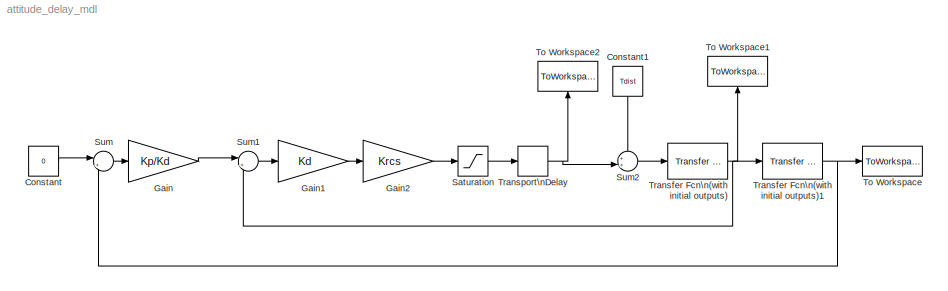
MODEL attitude_delay_mdl
KIND model
BLOCK [Constant] Constant
  OutDataType = sfix(16)
  OutScaling = 2^0
  Value = 0
BLOCK [Constant] Constant1
  OutDataType = sfix(16)
  OutScaling = 2^0
  Value = Tdist
BLOCK [Gain] Gain
  Gain = Kp/Kd
  OutDataType = sfix(16)
  OutScaling = 2^0
  ParameterDataType = sfix(16)
  ParameterScaling = 2^0
BLOCK [Gain] Gain1
  Gain = Kd
  OutDataType = sfix(16)
  OutScaling = 2^0
  ParameterDataType = sfix(16)
  ParameterScaling = 2^0
BLOCK [Gain] Gain2
  Gain = Krcs
  OutDataType = sfix(16)
  OutScaling = 2^0
  ParameterDataType = sfix(16)
  ParameterScaling = 2^0
BLOCK [Saturate] Saturation
  LowerLimit = -Trcs_max
  SampleTime = dt
  UpperLimit = Trcs_max
BLOCK [Sum] Sum
  IconShape = round
  InputSameDT = off
  Inputs = |+-
  OutDataType = sfix(16)
  OutDataTypeMode = Inherit via internal rule
  OutScaling = 2^0
  Ports = [2, 1]
BLOCK [Sum] Sum1
  IconShape = round
  InputSameDT = off
  Inputs = |+-
  OutDataType = sfix(16)
  OutDataTypeMode = Inherit via internal rule
  OutScaling = 2^0
  Ports = [2, 1]
BLOCK [Sum] Sum2
  IconShape = round
  InputSameDT = off
  Inputs = ++|
  OutDataType = sfix(16)
  OutDataTypeMode = Inherit via internal rule
  OutScaling = 2^0
  Ports = [2, 1]
BLOCK [ToWorkspace] To Workspace
  MaxDataPoints = inf
  SampleTime = dt
  SaveFormat = Array
  VariableName = angle3
BLOCK [ToWorkspace] To Workspace1
  MaxDataPoints = inf
  SampleTime = dt
  SaveFormat = Array
  VariableName = w3
BLOCK [ToWorkspace] To Workspace2
  MaxDataPoints = inf
  SampleTime = dt
  SaveFormat = Array
  VariableName = Trcs3
BLOCK [Reference] Transfer Fcn\n(with initial outputs)  REF=simulink_extras/Additional\nLinear/Transfer Fcn\n(with initial outputs)
  D = [I 0]
  FunctionWithSeparateData = off
  N = [1]
  Ports = [1, 1]
  RTWMemSecDataConstants = Inherit from model
  RTWMemSecDataInternal = Inherit from model
  RTWMemSecDataParameters = Inherit from model
  RTWMemSecFuncExecute = Inherit from model
  RTWMemSecFuncInitTerm = Inherit from model
  ShowPortLabels = FromPortIcon
  SourceBlock = simulink_extras/Additional\nLinear/Transfer Fcn\n(with initial outputs)
  SourceType = Transfer Function with Initial Outputs
  SystemSampleTime = -1
  U0 = 0
  Y0 = w0
BLOCK [Reference] Transfer Fcn\n(with initial outputs)1  REF=simulink_extras/Additional\nLinear/Transfer Fcn\n(with initial outputs)
  D = [1 0]
  FunctionWithSeparateData = off
  N = [1]
  Ports = [1, 1]
  RTWMemSecDataConstants = Inherit from model
  RTWMemSecDataInternal = Inherit from model
  RTWMemSecDataParameters = Inherit from model
  RTWMemSecFuncExecute = Inherit from model
  RTWMemSecFuncInitTerm = Inherit from model
  ShowPortLabels = FromPortIcon
  SourceBlock = simulink_extras/Additional\nLinear/Transfer Fcn\n(with initial outputs)
  SourceType = Transfer Function with Initial Outputs
  SystemSampleTime = -1
  U0 = w0
  Y0 = angle0
BLOCK [TransportDelay] Transport\nDelay
  DelayTime = t_delay
LINE Constant1:1 -> Sum2:1
LINE Constant:1 -> Sum:1
LINE Gain1:1 -> Gain2:1
LINE Gain2:1 -> Saturation:1
LINE Gain:1 -> Sum1:1
LINE Saturation:1 -> Transport\nDelay:1
LINE Sum1:1 -> Gain1:1
LINE Sum2:1 -> Transfer Fcn\n(with initial outputs):1
LINE Sum:1 -> Gain:1
NET Transfer Fcn\n(with initial outputs)1:1 -> Sum:2, To Workspace:1
NET Transfer Fcn\n(with initial outputs):1 -> Sum1:2, To Workspace1:1, Transfer Fcn\n(with initial outputs)1:1
NET Transport\nDelay:1 -> Sum2:2, To Workspace2:1
note: NET lines group one-source signal fan-out (src -> all destinations, sorted); 1:1 wires keep LINE
